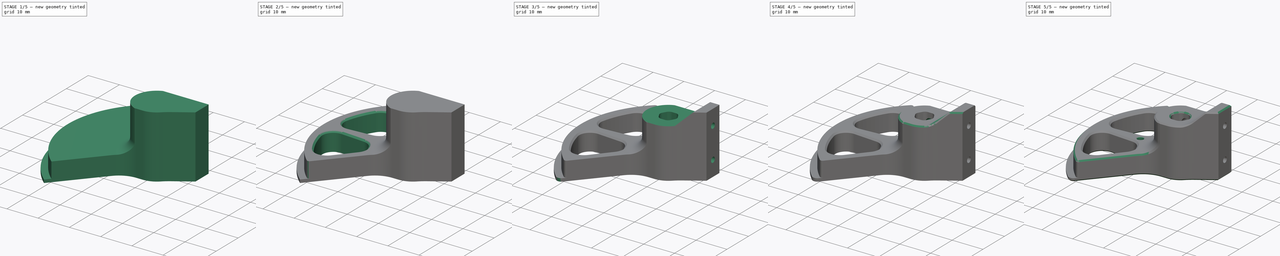
[diagram: build sequence overview — one tinted view per stage of 5, left to right]
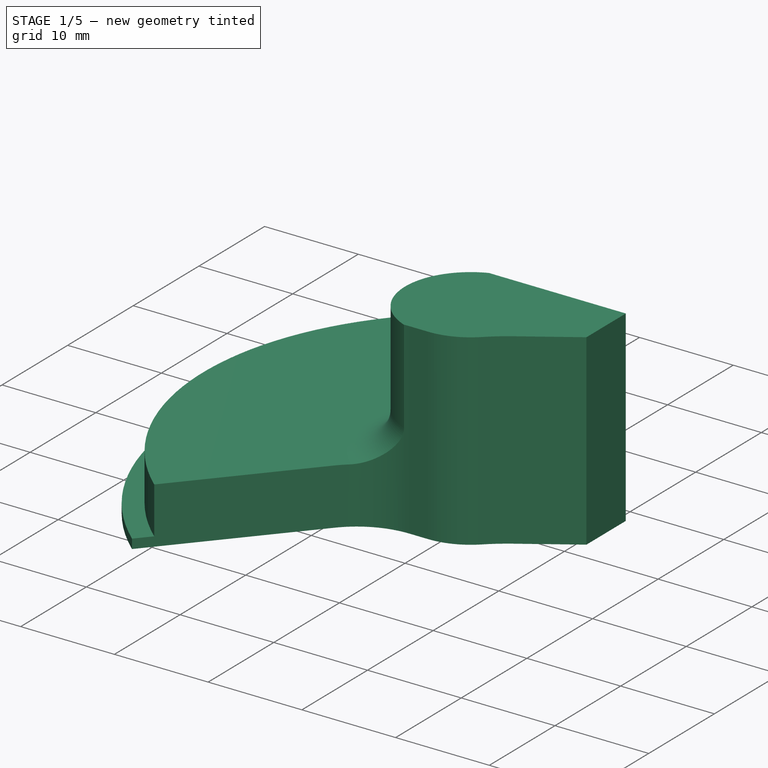
[diagram: stage 1 of 5 — iso view after this stage's code; geometry added in this stage tinted green]
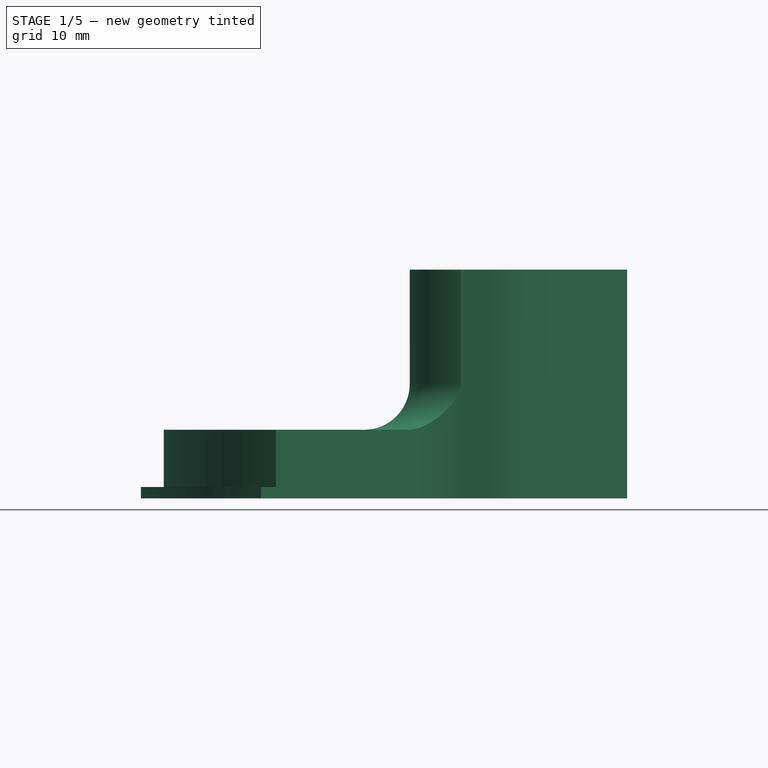
[diagram: stage 1 of 5 — front view after this stage's code; geometry added in this stage tinted green]
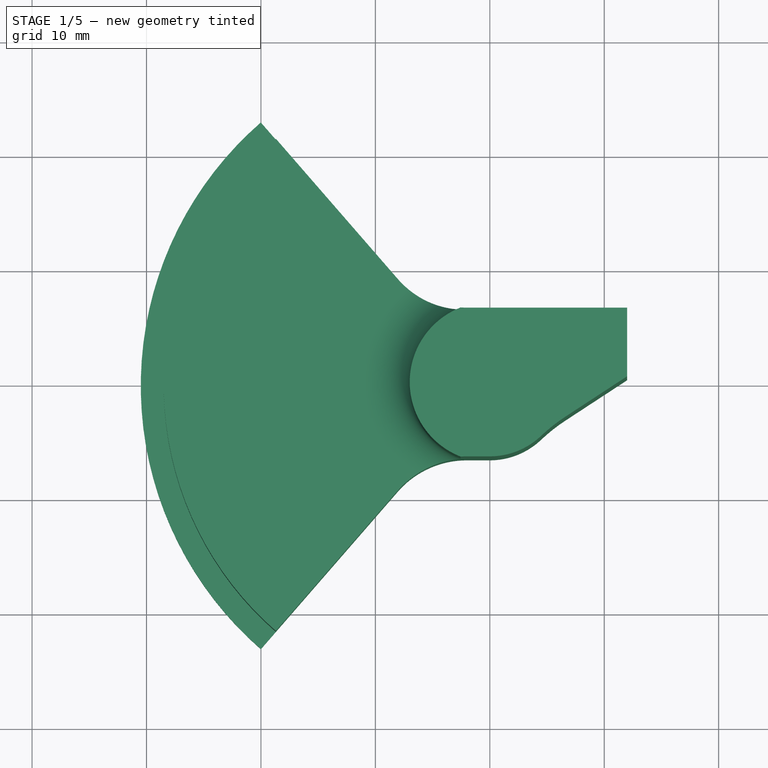
[diagram: stage 1 of 5 — top view after this stage's code; geometry added in this stage tinted green]
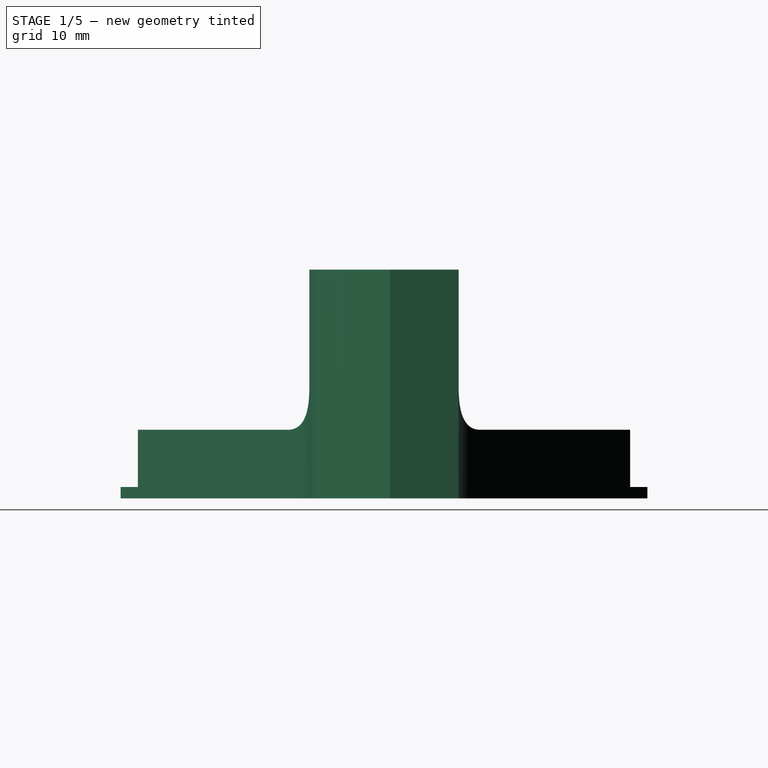
[diagram: stage 1 of 5 — right view after this stage's code; geometry added in this stage tinted green]
FCSTD DOCUMENT  (FreeCAD 1.1R41365 (Git))
Label: MotorHorn
License: All rights reserved
LicenseURL: https://en.wikipedia.org/wiki/All_rights_reserved
objects: Sketcher::SketchObject×9, PartDesign::Fillet×8, PartDesign::Pocket×7, PartDesign::Chamfer×7, App::Point×1, PartDesign::Pad×1, PartDesign::Groove×1, PartDesign::PolarPattern×1, Part::DatumPoint×1, PartDesign::Body×1
note: 93 computed .brp shape members not serialized (recipe doc carries the construction recipe); baked Part::Feature solids carry a one-line shape summary decoded from their .brp

FEATURE [App::Point] Origin001
  Role = Origin
FEATURE [Sketcher::SketchObject] Sketch
  ArcFitTolerance = 1e-06
  AttachmentSupport = -> [Origin]
  ExternalTypes = [0]
  FullyConstrained = true
  MakeInternals = false
  MapMode = 5
  sketch-geometry (10):
    g0: LineSegment StartX=-5.65036 StartY=6.5 StartZ=0 EndX=12 EndY=6.5 EndZ=0
    g1: LineSegment StartX=12 StartY=6.5 StartZ=0 EndX=12 EndY=0.5 EndZ=0
    g2: LineSegment StartX=12 StartY=0.5 StartZ=0 EndX=5.12348 EndY=-4 EndZ=0
    g3: GeomPoint X=12 Y=3.5 Z=0
    g4: ArcOfCircle CenterX=0 CenterY=0 CenterZ=0 NormalX=0 NormalY=0 NormalZ=1 AngleXU=0 Radius=30.5 StartAngle=2.28638 EndAngle=3.9968
    g5: LineSegment StartX=-20.0098 StartY=23.0186 StartZ=0 EndX=-5.65036 EndY=6.5 EndZ=0
    g6: LineSegment StartX=-20.0098 StartY=-23.0186 StartZ=0 EndX=-5.65036 EndY=-6.5 EndZ=0
    g7: ArcOfCircle CenterX=0 CenterY=0 CenterZ=0 NormalX=0 NormalY=0 NormalZ=1 AngleXU=0 Radius=6.5 StartAngle=4.71239 EndAngle=5.62031
    g8: LineSegment StartX=-5.65036 StartY=-6.5 StartZ=0 EndX=-9e-16 EndY=-6.5 EndZ=0
    g9: LineSegment [constr] StartX=0 StartY=6.5 StartZ=0 EndX=0 EndY=-6.5 EndZ=0
  constraints (29):
    c: Horizontal(g0)
    c: Coincident(g1,g0)
    c: Vertical(g1)
    c: Coincident(g2,g1)
    c: DistanceY(g1,g1) = 6
    c: Symmetric(g1,g1,g3)
    c: DistanceX(g-1,g3) = 12
    c: Coincident(g4,g-1)
    c: Radius(g4) = 30.5
    c: Coincident(g5,g4)
    c: Coincident(g5,g0)
    c: Coincident(g6,g4)
    c: PointOnObject(g-1,g6)
    c: PointOnObject(g-1,g5)
    c: Angle(g5,g-1) = 0.855211
    c: Angle(g-1,g6) = 0.855211
    c: Distance(g2,g-1) = 4
    c: Coincident(g7,g4)
    c: Coincident(g7,g2)
    c: PointOnObject(g7,g-2)
    c: Coincident(g8,g6)
    c: Coincident(g8,g7)
    c: Horizontal(g8)
    c: PointOnObject(g9,g0)
    c: PointOnObject(g9,g8)
    c: Vertical(g9)
    c: Symmetric(g9,g9,g4)
    c: Distance(g4,g8) = 6.5
    c: DistanceY(g-1,g1) = 0.5
FEATURE [PartDesign::Pad] Pad
  Direction = (0,0,1)
  Length = 20
  Length2 = 10
  Profile = -> Sketch
  ReferenceAxis = -> Sketch [N_Axis]
  Refine = true
  Suppressed = false
  Type = 0
FEATURE [PartDesign::Fillet] Fillet
  Base = -> Pad [Edge11]
  BaseFeature = -> Pad
  Radius = 15
  Refine = true
  SupportTransform = false
  Suppressed = false
  UseAllEdges = false
FEATURE [Sketcher::SketchObject] Sketch001
  ArcFitTolerance = 1e-06
  AttachmentSupport = -> [Origin]
  ExternalTypes = [0]
  FullyConstrained = false
  MakeInternals = false
  MapMode = 5
  Placement = pos=(0,0,0) rot=(0.57735,0.57735,0.57735;2.0944rad)
  sketch-geometry (5):
    g0: ArcOfCircle CenterX=-11 CenterY=10 CenterZ=0 NormalX=0 NormalY=0 NormalZ=1 AngleXU=0 Radius=4 StartAngle=4.71239 EndAngle=6.28319
    g1: LineSegment StartX=-11 StartY=6 StartZ=0 EndX=-40 EndY=6 EndZ=0
    g2: LineSegment StartX=-40 StartY=6 StartZ=0 EndX=-40 EndY=23.8107 EndZ=0
    g3: LineSegment StartX=-40 StartY=23.8107 StartZ=0 EndX=-7 EndY=23.8107 EndZ=0
    g4: LineSegment StartX=-7 StartY=23.8107 StartZ=0 EndX=-7 EndY=10 EndZ=0
  constraints (13):
    c: Horizontal(g1)
    c: Coincident(g2,g1)
    c: Vertical(g2)
    c: Coincident(g3,g2)
    c: Horizontal(g3)
    c: Coincident(g4,g3)
    c: Vertical(g4)
    c: Tangent(g4,g0) = 1.5708
    c: Tangent(g1,g0) = 1.5708
    c: Distance(g-1,g1) = 6
    c: Radius(g0) = 4
    c: Distance(g-2,g4) = 7
    c: Distance(g-2,g2) = 40
FEATURE [PartDesign::Fillet] Fillet001
  Base = -> Fillet [Edge25,Edge24]
  BaseFeature = -> Fillet
  Radius = 8
  Refine = true
  SupportTransform = false
  Suppressed = false
  UseAllEdges = false
FEATURE [PartDesign::Groove] Groove
  Angle = 180
  Angle2 = 60
  Axis = (0,0,1)
  Base = (0,0,0)
  BaseFeature = -> Fillet001
  Profile = -> Sketch001
  ReferenceAxis = -> Sketch001 [V_Axis]
  Refine = true
  Reversed = true
  Suppressed = false
  Type = 0
FEATURE [Sketcher::SketchObject] Sketch002
  ArcFitTolerance = 1e-06
  AttachmentSupport = -> [Groove]
  ExternalTypes = [0]
  FullyConstrained = true
  MakeInternals = false
  MapMode = 5
  Placement = pos=(0,0,6) rot=(0,0,1;0rad)
  sketch-geometry (2):
    g0: Circle CenterX=0 CenterY=0 CenterZ=0 NormalX=0 NormalY=0 NormalZ=1 AngleXU=0 Radius=28.5
    g1: Circle CenterX=0 CenterY=0 CenterZ=0 NormalX=0 NormalY=0 NormalZ=1 AngleXU=0 Radius=35
  constraints (4):
    c: Coincident(g0,g-1)
    c: Coincident(g1,g0)
    c: Diameter(g1) = 70
    c: Diameter(g0) = 57
FEATURE [PartDesign::Pocket] Pocket
  BaseFeature = -> Groove
  Direction = (0,0,-1)
  Length = 5
  Length2 = 5
  Profile = -> Sketch002
  ReferenceAxis = -> Sketch002 [N_Axis]
  Refine = true
  Suppressed = false
  Type = 0
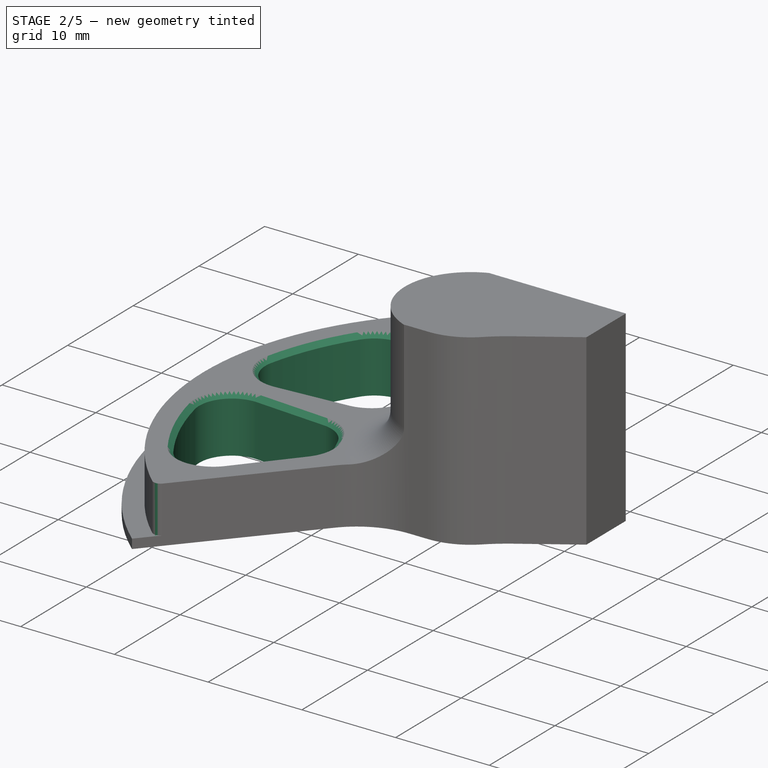
[diagram: stage 2 of 5 — iso view after this stage's code; geometry added in this stage tinted green]
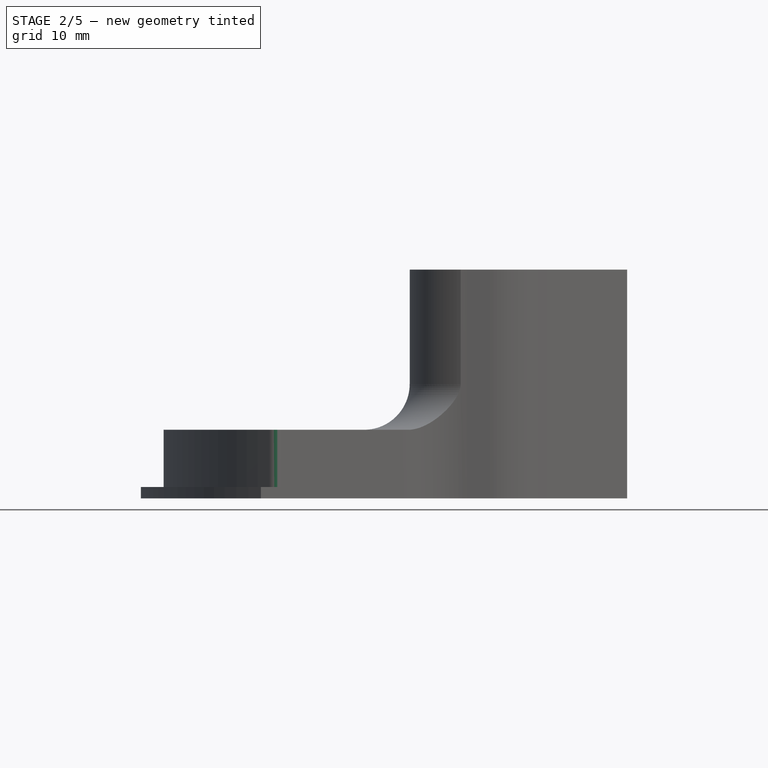
[diagram: stage 2 of 5 — front view after this stage's code; geometry added in this stage tinted green]
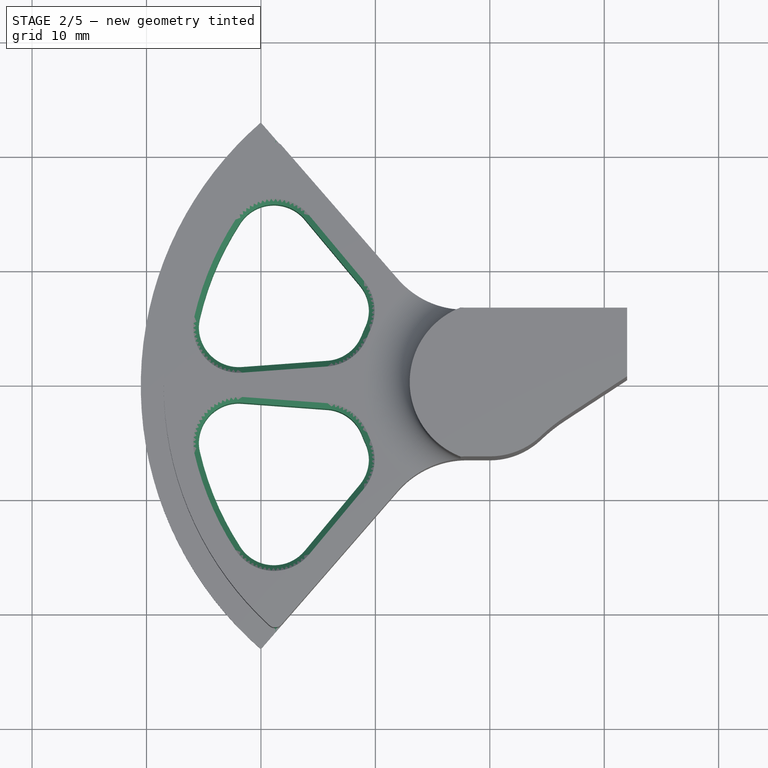
[diagram: stage 2 of 5 — top view after this stage's code; geometry added in this stage tinted green]
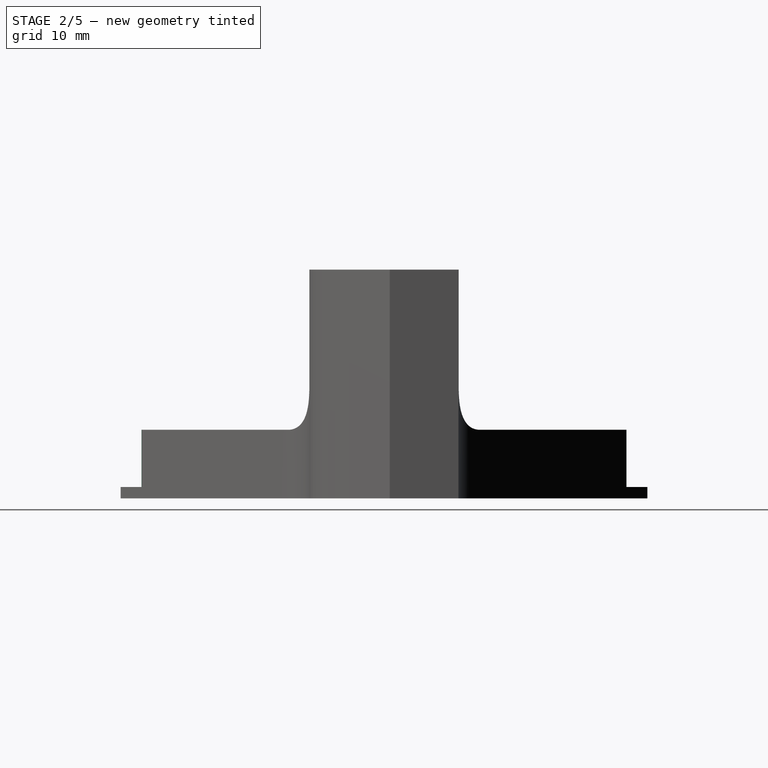
[diagram: stage 2 of 5 — right view after this stage's code; geometry added in this stage tinted green]
FEATURE [Sketcher::SketchObject] Sketch003
  ArcFitTolerance = 1e-06
  AttachmentSupport = -> [Pocket]
  ExternalTypes = [0]
  FullyConstrained = true
  MakeInternals = false
  MapMode = 5
  Placement = pos=(0,0,6) rot=(0,0,1;0rad)
  sketch-geometry (7):
    g0: ArcOfCircle CenterX=0 CenterY=0 CenterZ=0 NormalX=0 NormalY=0 NormalZ=1 AngleXU=0 Radius=26 StartAngle=2.3867 EndAngle=3.09364
    g1: ArcOfCircle CenterX=0 CenterY=0 CenterZ=0 NormalX=0 NormalY=0 NormalZ=1 AngleXU=0 Radius=12 StartAngle=2.5303 EndAngle=2.95004
    g2: LineSegment StartX=-18.9369 StartY=17.8155 StartZ=0 EndX=-9.82686 EndY=6.88715 EndZ=0
    g3: LineSegment StartX=-25.9701 StartY=1.24641 StartZ=0 EndX=-11.7805 EndY=2.28463 EndZ=0
    g4: LineSegment [constr] StartX=-18.9369 StartY=17.8155 StartZ=0 EndX=-25.9701 EndY=1.24641 EndZ=0
    g5: LineSegment [constr] StartX=-11.7805 StartY=2.28463 StartZ=0 EndX=-9.82686 EndY=6.88715 EndZ=0
    g6: LineSegment [constr] StartX=-22.4535 StartY=9.53096 StartZ=0 EndX=-10.8037 EndY=4.58589 EndZ=0
  constraints (18):
    c: Coincident(g0,g-1)
    c: Coincident(g1,g0)
    c: Coincident(g2,g0)
    c: Coincident(g2,g1)
    c: Coincident(g3,g0)
    c: Coincident(g3,g1)
    c: Radius(g1) = 12
    c: Radius(g0) = 26
    c: Coincident(g4,g0)
    c: Coincident(g4,g0)
    c: Coincident(g5,g1)
    c: Coincident(g5,g1)
    c: Symmetric(g4,g4,g6)
    c: Symmetric(g5,g5,g6)
    c: Perpendicular(g5,g6)
    c: Distance(g5,g5) = 5
    c: Distance(g4,g4) = 18
    c: Angle(g6,g-1) = 0.401426
FEATURE [PartDesign::Pocket] Pocket001
  BaseFeature = -> Pocket
  Direction = (0,0,-1)
  Length = 5
  Length2 = 5
  Profile = -> Sketch003
  ReferenceAxis = -> Sketch003 [N_Axis]
  Refine = true
  Suppressed = false
  Type = 1
FEATURE [PartDesign::Fillet] Fillet002
  Base = -> Pocket001 [Edge54,Edge52,Edge50,Edge49]
  BaseFeature = -> Pocket001
  Radius = 3.5
  Refine = true
  SupportTransform = false
  Suppressed = false
  UseAllEdges = false
FEATURE [PartDesign::PolarPattern] PolarPattern
  Angle = 360
  Axis = -> Z_Axis
  BaseFeature = -> Fillet002
  Mode = 1
  Occurrences = 2
  Offset = 46
  Originals = -> [Pocket001,Fillet002]
  Refine = true
  Suppressed = false
  TransformMode = 0
FEATURE [PartDesign::Chamfer] Chamfer
  Angle = 45
  Base = -> PolarPattern [Edge70,Edge84]
  BaseFeature = -> PolarPattern
  ChamferType = 0
  FlipDirection = false
  Refine = true
  Size = 0.5
  Size2 = 1
  SupportTransform = false
  Suppressed = false
  UseAllEdges = false
FEATURE [PartDesign::Fillet] Fillet003
  Base = -> Chamfer [Edge80,Edge86]
  BaseFeature = -> Chamfer
  Radius = 0.75
  Refine = true
  SupportTransform = false
  Suppressed = false
  UseAllEdges = false
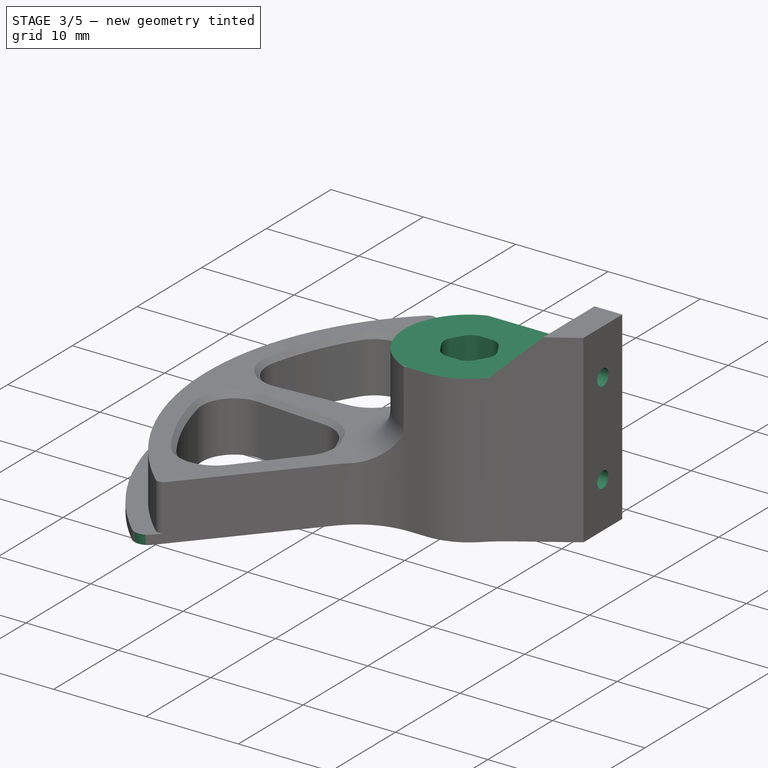
[diagram: stage 3 of 5 — iso view after this stage's code; geometry added in this stage tinted green]
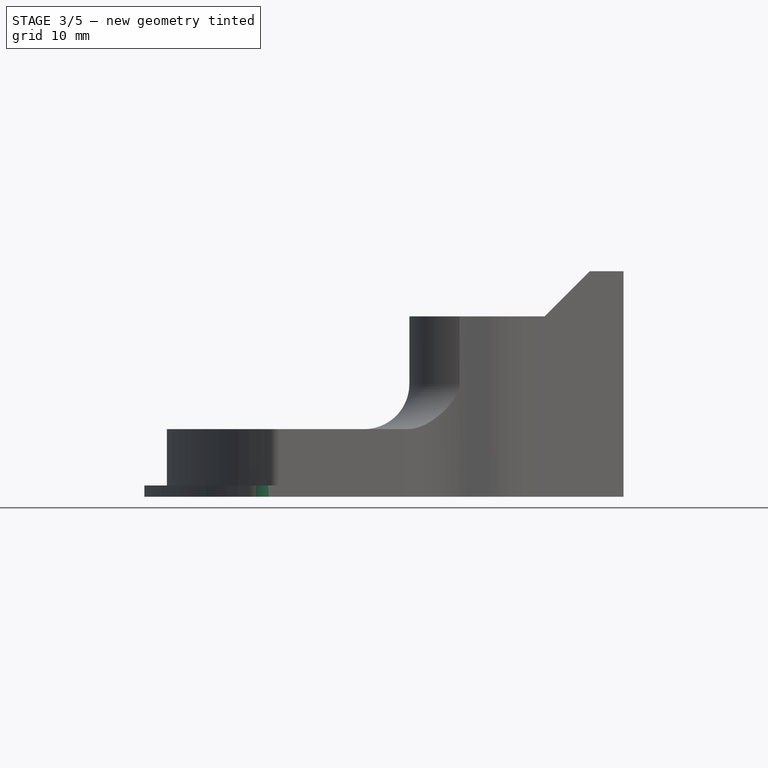
[diagram: stage 3 of 5 — front view after this stage's code; geometry added in this stage tinted green]
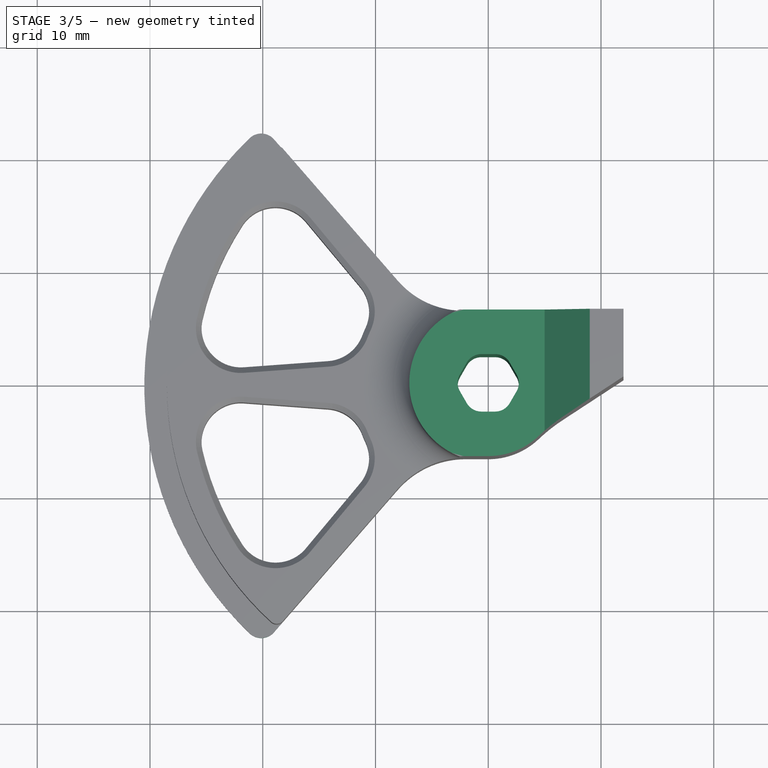
[diagram: stage 3 of 5 — top view after this stage's code; geometry added in this stage tinted green]
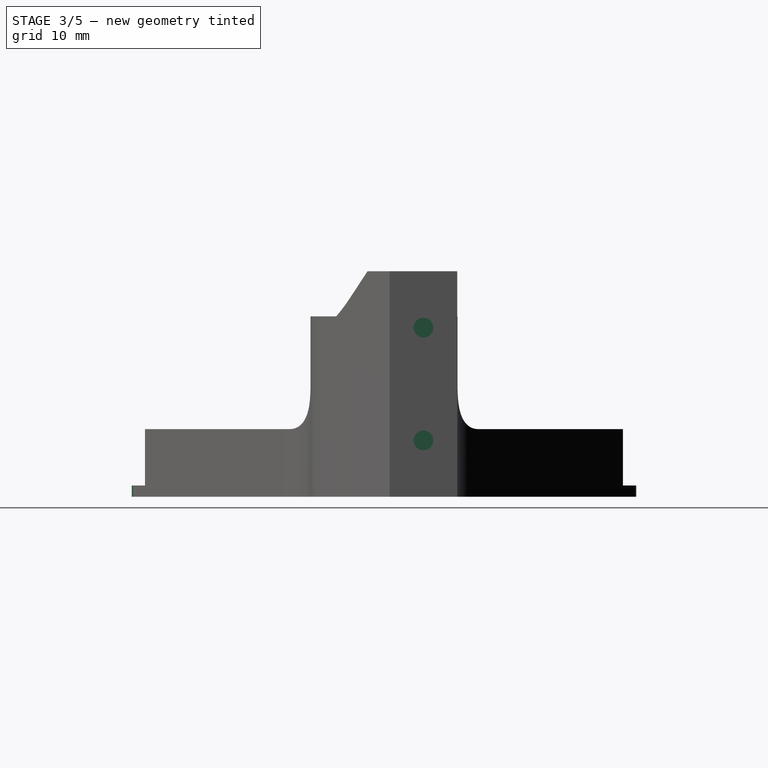
[diagram: stage 3 of 5 — right view after this stage's code; geometry added in this stage tinted green]
FEATURE [PartDesign::Fillet] Fillet004
  Base = -> Fillet003 [Edge52,Edge30]
  BaseFeature = -> Fillet003
  Radius = 1.5
  Refine = true
  SupportTransform = false
  Suppressed = false
  UseAllEdges = false
FEATURE [Sketcher::SketchObject] Sketch005
  ArcFitTolerance = 1e-06
  AttachmentSupport = -> [Origin]
  ExternalTypes = [0]
  FullyConstrained = true
  MakeInternals = false
  MapMode = 5
  sketch-geometry (7):
    g0: LineSegment StartX=2.94449 StartY=0 StartZ=0 EndX=1.47224 EndY=2.55 EndZ=0
    g1: LineSegment StartX=1.47224 StartY=2.55 StartZ=0 EndX=-1.47224 EndY=2.55 EndZ=0
    g2: LineSegment StartX=-1.47224 StartY=2.55 StartZ=0 EndX=-2.94449 EndY=0 EndZ=0
    g3: LineSegment StartX=-2.94449 StartY=0 StartZ=0 EndX=-1.47224 EndY=-2.55 EndZ=0
    g4: LineSegment StartX=-1.47224 StartY=-2.55 StartZ=0 EndX=1.47224 EndY=-2.55 EndZ=0
    g5: LineSegment StartX=1.47224 StartY=-2.55 StartZ=0 EndX=2.94449 EndY=0 EndZ=0
    g6: Circle [constr] CenterX=0 CenterY=0 CenterZ=0 NormalX=0 NormalY=0 NormalZ=1 AngleXU=0 Radius=2.94449
  constraints (16):
    c: Coincident(g0,g1)
    c: Coincident(g1,g2)
    c: Coincident(g2,g3)
    c: Coincident(g3,g4)
    c: Coincident(g4,g5)
    c: Coincident(g5,g0)
    c: Equal(g0, g1-g5) x5
    c: PointOnObject(g0,g6)
    c: PointOnObject(g1,g6)
    c: PointOnObject(g2,g6)
    c: PointOnObject(g3,g6)
    c: PointOnObject(g4,g6)
    c: PointOnObject(g5,g6)
    c: Coincident(g6,g-1)
    c: PointOnObject(g5,g-1)
    c: Distance(g4,g1) = 5.1
FEATURE [PartDesign::Pocket] Pocket002
  BaseFeature = -> Fillet004
  Direction = (0,0,-1)
  Length = 5
  Length2 = 5
  Profile = -> Sketch005
  ReferenceAxis = -> Sketch005 [N_Axis]
  Refine = true
  Reversed = true
  Suppressed = false
  Type = 1
FEATURE [PartDesign::Fillet] Fillet005
  Base = -> Pocket002 [Edge122,Edge124,Edge120,Edge118,Edge116,Edge114]
  BaseFeature = -> Pocket002
  Radius = 1.5
  Refine = true
  SupportTransform = false
  Suppressed = false
  UseAllEdges = false
FEATURE [Sketcher::SketchObject] Sketch006
  ArcFitTolerance = 1e-06
  AttachmentSupport = -> [Fillet005]
  ExternalGeometry = -> [Fillet005]
  ExternalTypes = [0,0]
  FullyConstrained = true
  MakeInternals = false
  MapMode = 5
  Placement = pos=(12,0,0) rot=(0.57735,0.57735,0.57735;2.0944rad)
  sketch-geometry (3):
    g0: LineSegment [constr] StartX=3.5 StartY=20 StartZ=0 EndX=3.5 EndY=0 EndZ=0
    g1: Circle CenterX=3.5 CenterY=15 CenterZ=0 NormalX=0 NormalY=0 NormalZ=1 AngleXU=0 Radius=0.875
    g2: Circle CenterX=3.5 CenterY=5 CenterZ=0 NormalX=0 NormalY=0 NormalZ=1 AngleXU=0 Radius=0.875
  constraints (8):
    c: Symmetric(g-3,g-3,g0)
    c: Symmetric(g-4,g-4,g0)
    c: PointOnObject(g1,g0)
    c: PointOnObject(g2,g0)
    c: Equal(g2,g1)
    c: Diameter(g1) = 1.75
    c: DistanceY(g2,g1) = 10
    c: DistanceY(g-1,g2) = 5
FEATURE [PartDesign::Pocket] Pocket003
  BaseFeature = -> Fillet005
  Direction = (-1,0,0)
  Length = 6
  Length2 = 5
  Profile = -> Sketch006
  ReferenceAxis = -> Sketch006 [N_Axis]
  Refine = true
  Suppressed = false
  Type = 0
FEATURE [Sketcher::SketchObject] Sketch007
  ArcFitTolerance = 1e-06
  AttachmentSupport = -> [Origin]
  ExternalTypes = [0]
  FullyConstrained = false
  MakeInternals = false
  MapMode = 5
  Placement = pos=(0,0,0) rot=(1,0,0;1.5708rad)
  sketch-geometry (4):
    g0: LineSegment StartX=-13.3279 StartY=16 StartZ=0 EndX=5 EndY=16 EndZ=0
    g1: LineSegment StartX=5 StartY=16 StartZ=0 EndX=15 EndY=26 EndZ=0
    g2: LineSegment StartX=15 StartY=26 StartZ=0 EndX=-13.3279 EndY=26 EndZ=0
    g3: LineSegment StartX=-13.3279 StartY=26 StartZ=0 EndX=-13.3279 EndY=16 EndZ=0
  constraints (11):
    c: Horizontal(g0)
    c: Coincident(g1,g0)
    c: Horizontal(g2)
    c: Coincident(g3,g2)
    c: Coincident(g3,g0)
    c: Vertical(g3)
    c: Angle(g2,g1) = 0.785398
    c: Distance(g0,g-2) = 5
    c: Coincident(g1,g2)
    c: DistanceY(g3,g3) = 10
    c: Distance(g-1,g0) = 16
FEATURE [PartDesign::Pocket] Pocket004
  BaseFeature = -> Pocket003
  Direction = (0,1,-2e-16)
  Length = 30
  Length2 = 5
  Midplane = true
  Profile = -> Sketch007
  ReferenceAxis = -> Sketch007 [N_Axis]
  Refine = true
  Suppressed = false
  Type = 0
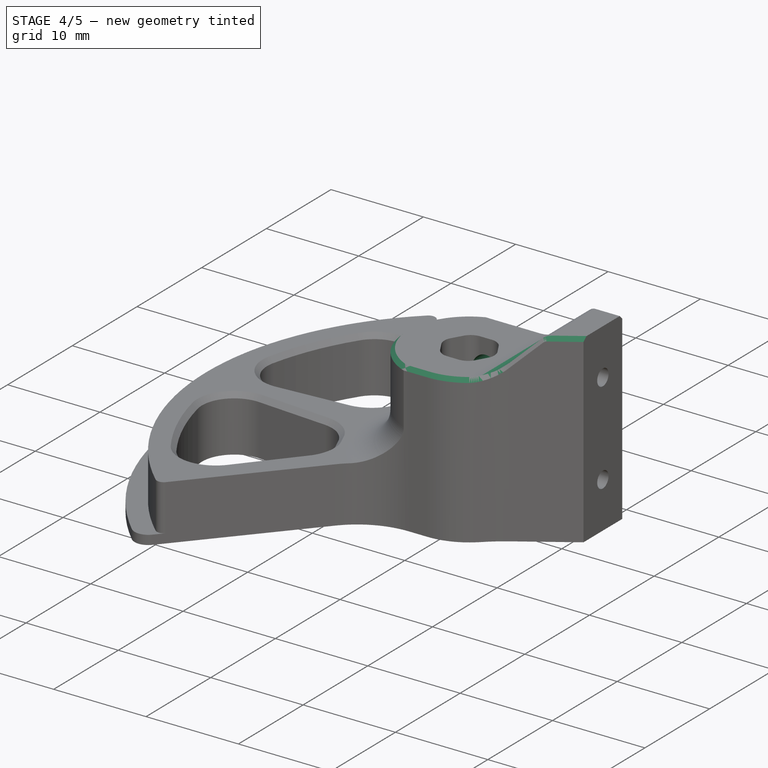
[diagram: stage 4 of 5 — iso view after this stage's code; geometry added in this stage tinted green]
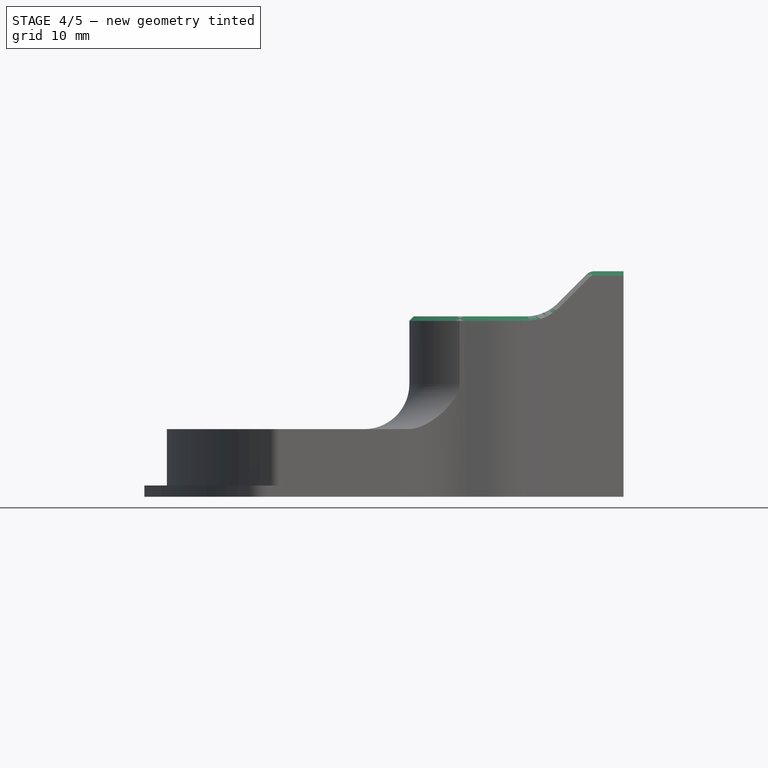
[diagram: stage 4 of 5 — front view after this stage's code; geometry added in this stage tinted green]
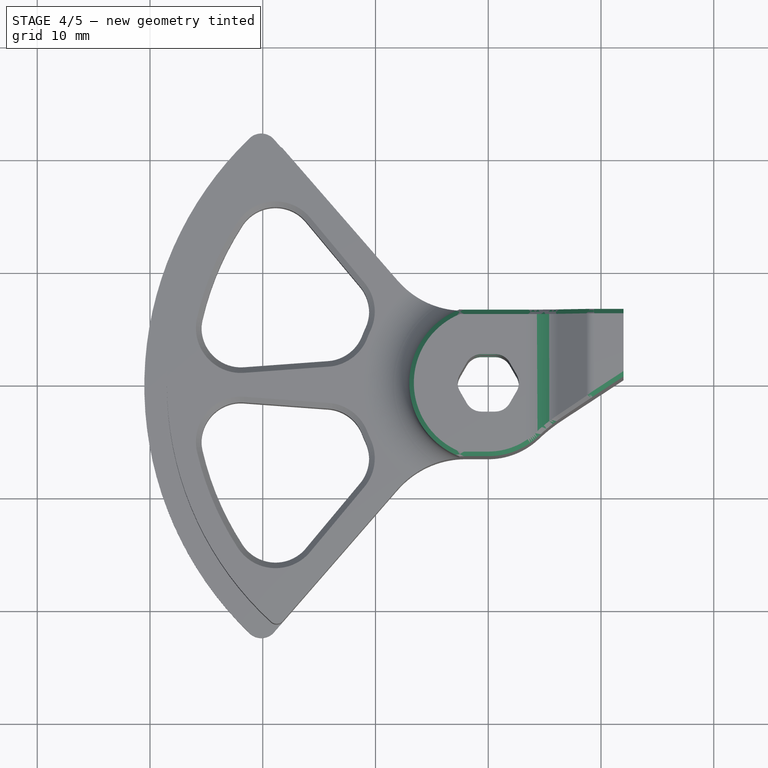
[diagram: stage 4 of 5 — top view after this stage's code; geometry added in this stage tinted green]
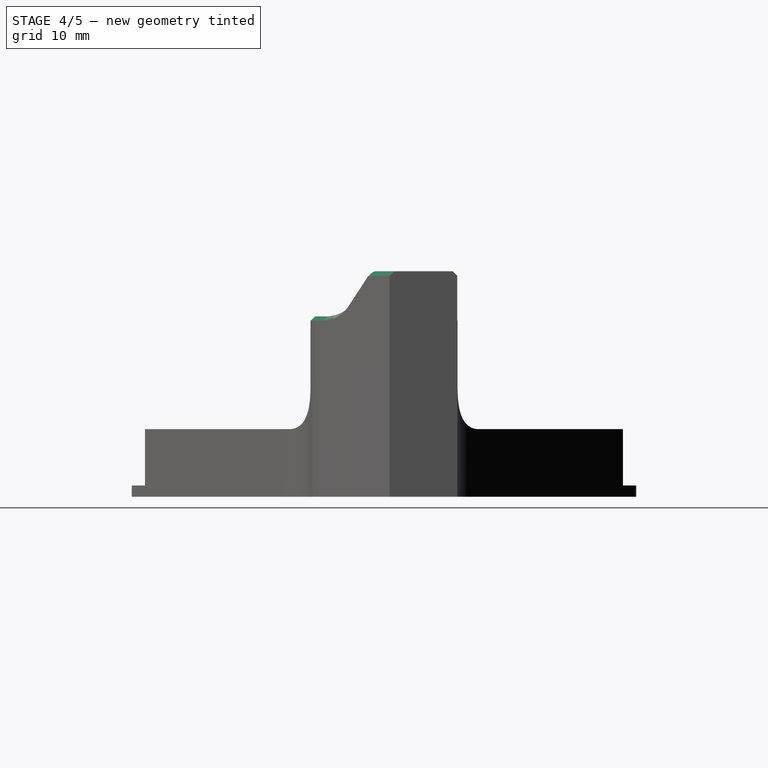
[diagram: stage 4 of 5 — right view after this stage's code; geometry added in this stage tinted green]
FEATURE [PartDesign::Fillet] Fillet006
  Base = -> Pocket004 [Edge142]
  BaseFeature = -> Pocket004
  Radius = 4
  Refine = true
  SupportTransform = false
  Suppressed = false
  UseAllEdges = false
FEATURE [Sketcher::SketchObject] Sketch009
  ArcFitTolerance = 1e-06
  AttachmentSupport = -> [Origin]
  ExternalTypes = [0]
  FullyConstrained = true
  MakeInternals = false
  MapMode = 5
  Placement = pos=(0,0,0) rot=(1,0,0;1.5708rad)
  sketch-geometry (2):
    g0: Circle CenterX=0 CenterY=13 CenterZ=0 NormalX=0 NormalY=0 NormalZ=1 AngleXU=0 Radius=1.35
    g1: Circle CenterX=0 CenterY=3 CenterZ=0 NormalX=0 NormalY=0 NormalZ=1 AngleXU=0 Radius=1.35
  constraints (6):
    c: PointOnObject(g0,g-2)
    c: PointOnObject(g1,g-2)
    c: Equal(g1,g0)
    c: Diameter(g0) = 2.7
    c: DistanceY(g1,g0) = 10
    c: DistanceY(g-1,g1) = 3
FEATURE [PartDesign::Pocket] Pocket005
  BaseFeature = -> Fillet006
  Direction = (0,1,-2e-16)
  Length = 11
  Length2 = 5
  Profile = -> Sketch009
  ReferenceAxis = -> Sketch009 [N_Axis]
  Refine = true
  Suppressed = false
  Type = 0
FEATURE [PartDesign::Fillet] Fillet007
  Base = -> Pocket005 [Edge72]
  BaseFeature = -> Pocket005
  Radius = 1
  Refine = true
  SupportTransform = false
  Suppressed = false
  UseAllEdges = false
FEATURE [PartDesign::Chamfer] Chamfer001
  Angle = 45
  Base = -> Fillet007 [Edge16,Edge13]
  BaseFeature = -> Fillet007
  ChamferType = 0
  FlipDirection = false
  Refine = true
  Size = 0.4
  Size2 = 1
  SupportTransform = false
  Suppressed = false
  UseAllEdges = false
FEATURE [PartDesign::Chamfer] Chamfer002
  Angle = 45
  Base = -> Chamfer001 [Edge50]
  BaseFeature = -> Chamfer001
  ChamferType = 0
  FlipDirection = false
  Refine = true
  Size = 0.4
  Size2 = 1
  SupportTransform = false
  Suppressed = false
  UseAllEdges = false
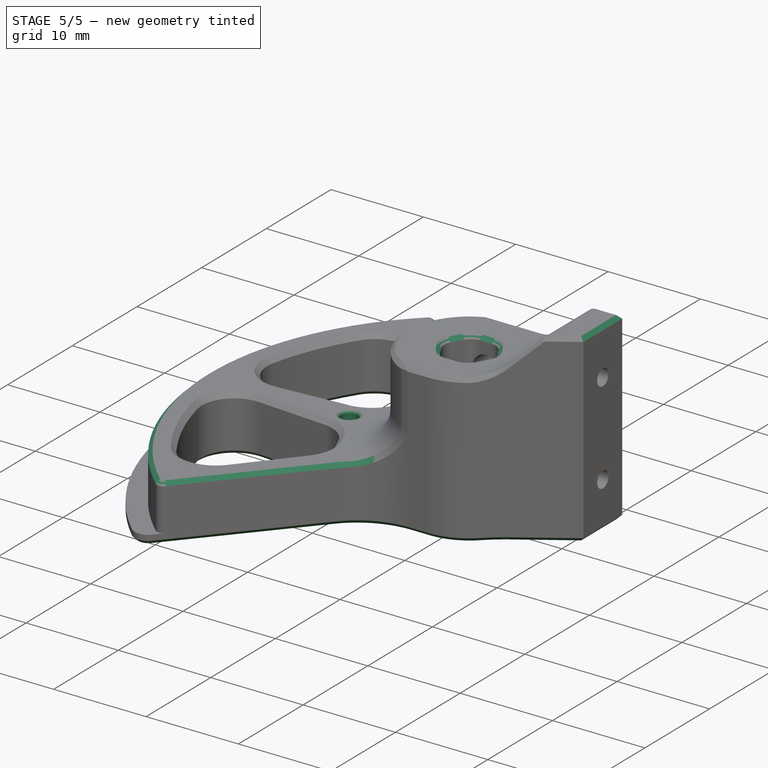
[diagram: stage 5 of 5 — iso view after this stage's code; geometry added in this stage tinted green]
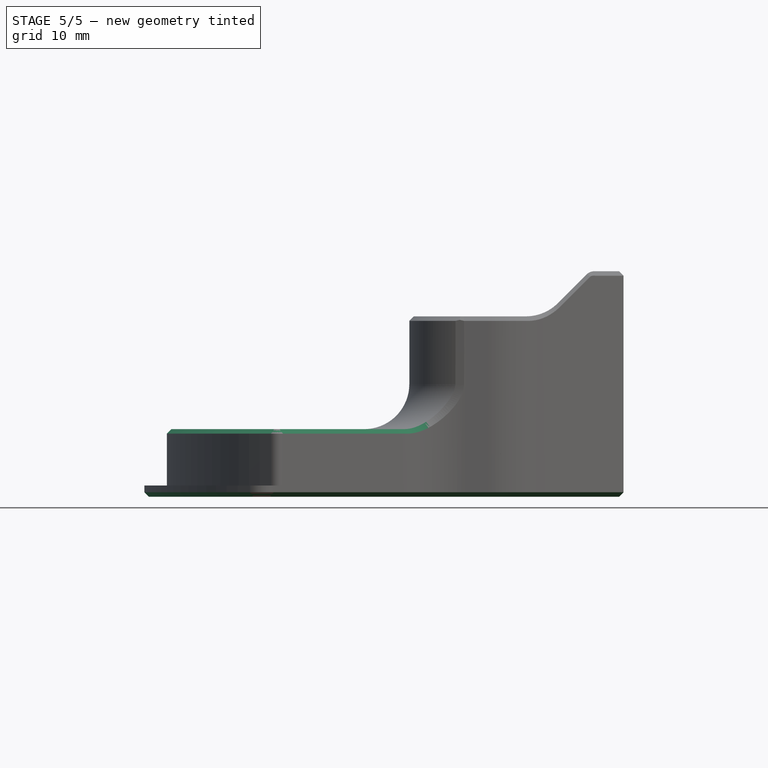
[diagram: stage 5 of 5 — front view after this stage's code; geometry added in this stage tinted green]
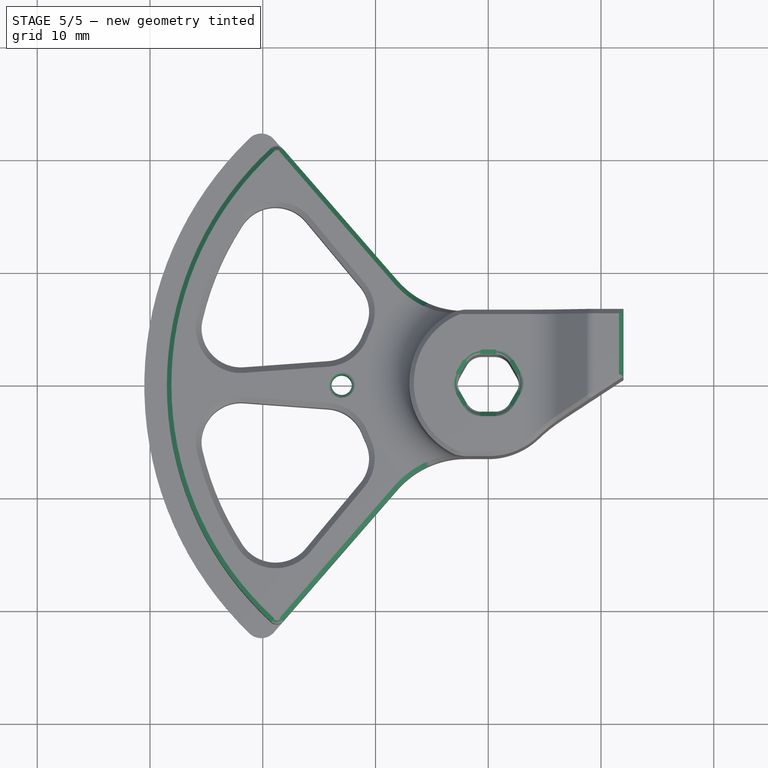
[diagram: stage 5 of 5 — top view after this stage's code; geometry added in this stage tinted green]
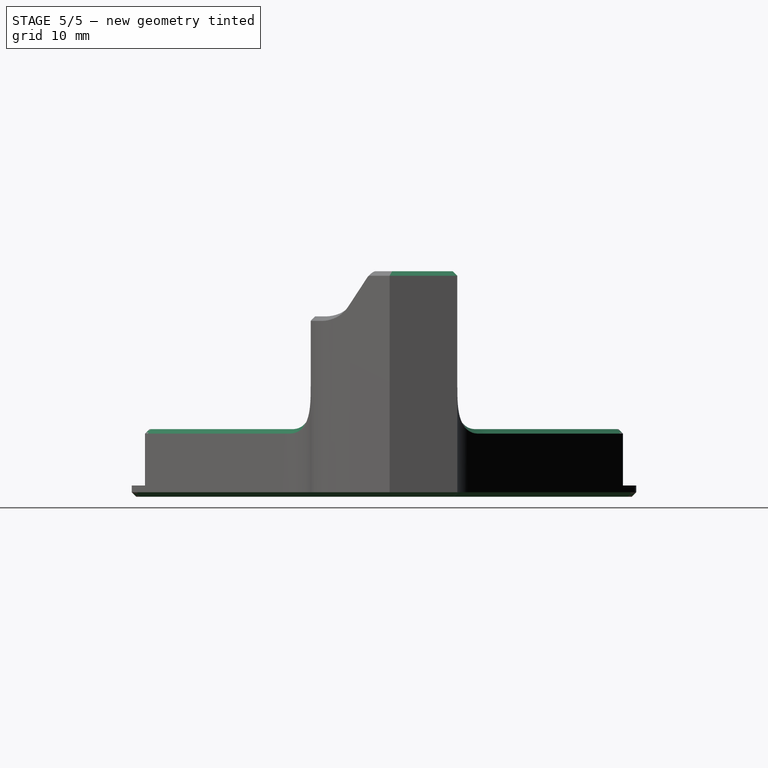
[diagram: stage 5 of 5 — right view after this stage's code; geometry added in this stage tinted green]
FEATURE [PartDesign::Chamfer] Chamfer003
  Angle = 45
  Base = -> Chamfer002 [Edge142]
  BaseFeature = -> Chamfer002
  ChamferType = 0
  FlipDirection = false
  Refine = true
  Size = 0.4
  Size2 = 1
  SupportTransform = false
  Suppressed = false
  UseAllEdges = false
FEATURE [PartDesign::Chamfer] Chamfer004
  Angle = 45
  Base = -> Chamfer003 [Face27]
  BaseFeature = -> Chamfer003
  ChamferType = 0
  FlipDirection = false
  Refine = true
  Size = 0.4
  Size2 = 1
  SupportTransform = false
  Suppressed = false
  UseAllEdges = false
FEATURE [PartDesign::Chamfer] Chamfer005
  Angle = 45
  Base = -> Chamfer004 [Edge117,Edge40]
  BaseFeature = -> Chamfer004
  ChamferType = 0
  FlipDirection = false
  Refine = true
  Size = 0.4
  Size2 = 1
  SupportTransform = false
  Suppressed = false
  UseAllEdges = false
FEATURE [Sketcher::SketchObject] Sketch010
  ArcFitTolerance = 1e-06
  AttachmentSupport = -> [Chamfer005]
  ExternalTypes = [0]
  FullyConstrained = true
  MakeInternals = false
  MapMode = 5
  Placement = pos=(0,0,6) rot=(0,0,1;0rad)
  sketch-geometry (1):
    g0: Circle CenterX=-13 CenterY=0 CenterZ=0 NormalX=0 NormalY=0 NormalZ=1 AngleXU=0 Radius=0.9
  constraints (3):
    c: PointOnObject(g0,g-1)
    c: Diameter(g0) = 1.8
    c: DistanceX(g0,g-1) = 13
FEATURE [PartDesign::Pocket] Pocket006
  BaseFeature = -> Chamfer005
  Direction = (0,0,-1)
  Length = 9
  Length2 = 5
  Profile = -> Sketch010
  ReferenceAxis = -> Sketch010 [N_Axis]
  Refine = true
  Suppressed = false
  Type = 0
FEATURE [PartDesign::Chamfer] Chamfer006
  Angle = 45
  Base = -> Pocket006 [Edge223,Edge104]
  BaseFeature = -> Pocket006
  ChamferType = 0
  FlipDirection = false
  Refine = true
  Size = 0.25
  Size2 = 1
  SupportTransform = false
  Suppressed = false
  UseAllEdges = false
FEATURE [Part::DatumPoint] DatumPoint  label="ArmAttachmentCenter"
  AttacherType = Attacher::AttachEnginePoint
  AttachmentOffset = pos=(15,0,10) rot=(0,0,1;0rad)
  AttachmentSupport = -> [Origin]
  MapMode = 37
  Placement = pos=(15,0,10) rot=(0,0,1;0rad)
FEATURE [PartDesign::Body] Body  label="MotorHorn"
  AllowCompound = false
  Group = -> [Sketch,Pad,Fillet,Sketch001,Fillet001,Groove,Sketch002,Pocket,Sketch003,Pocket001,Fillet002,PolarPattern,Chamfer,Fillet003,Fillet004,Sketch005,Pocket002,Fillet005,Sketch006,Pocket003,Sketch007,Pocket004,Fillet006,Sketch009,Pocket005,Fillet007,Chamfer001,Chamfer002,Chamfer003,Chamfer004,Chamfer005,Sketch010,Pocket006,Chamfer006,DatumPoint]
  Origin = -> Origin
  Tip = -> Chamfer006
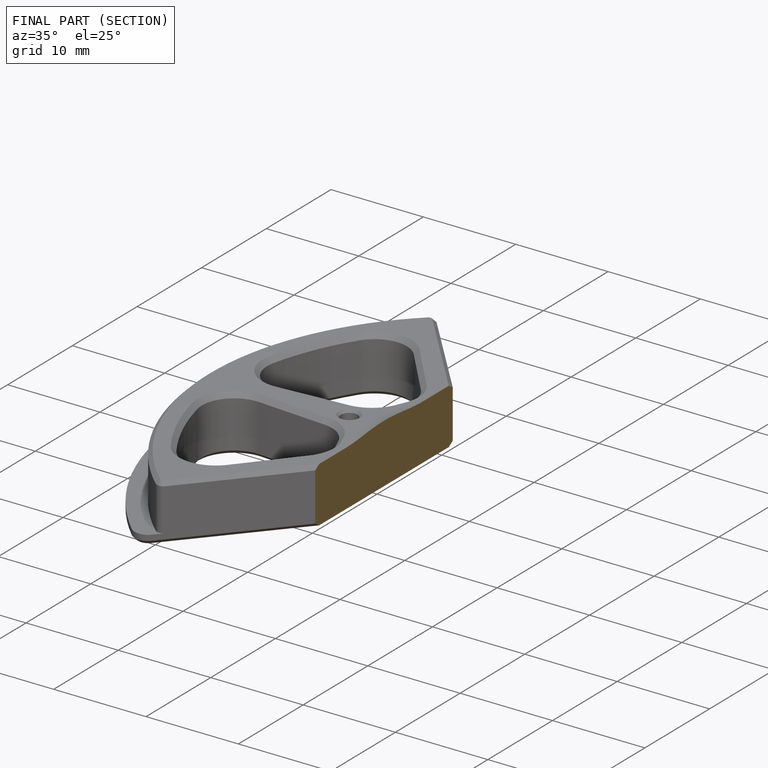
[diagram: finished part — half-section view (interior)]
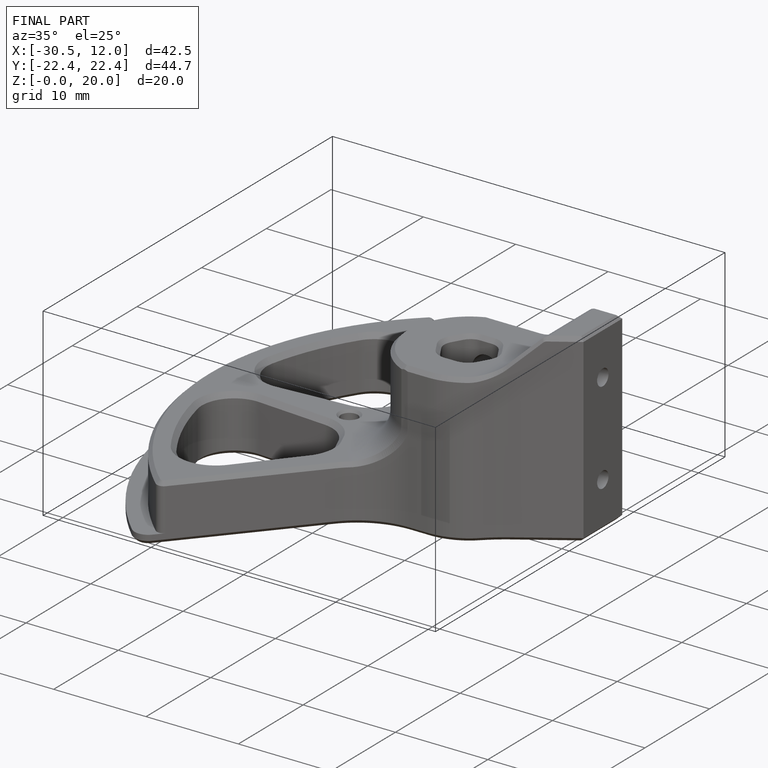
[diagram: finished part — iso view with bounding-box wireframe]
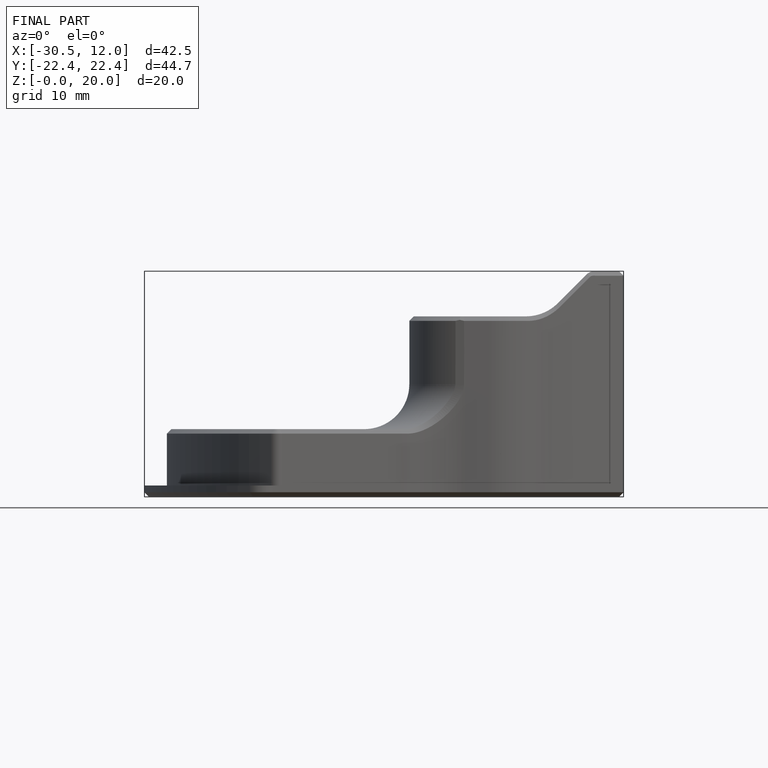
[diagram: finished part — front view with bounding-box wireframe]
